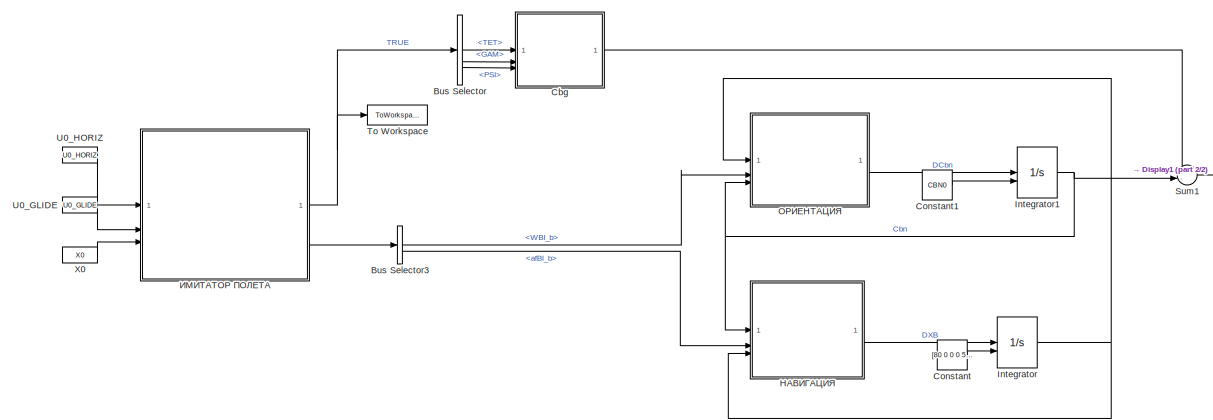
[diagram: root canvas - part 1/2, most of the canvas]
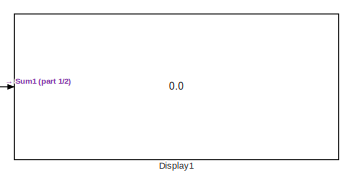
[diagram: root canvas - part 2/2, middle right region]
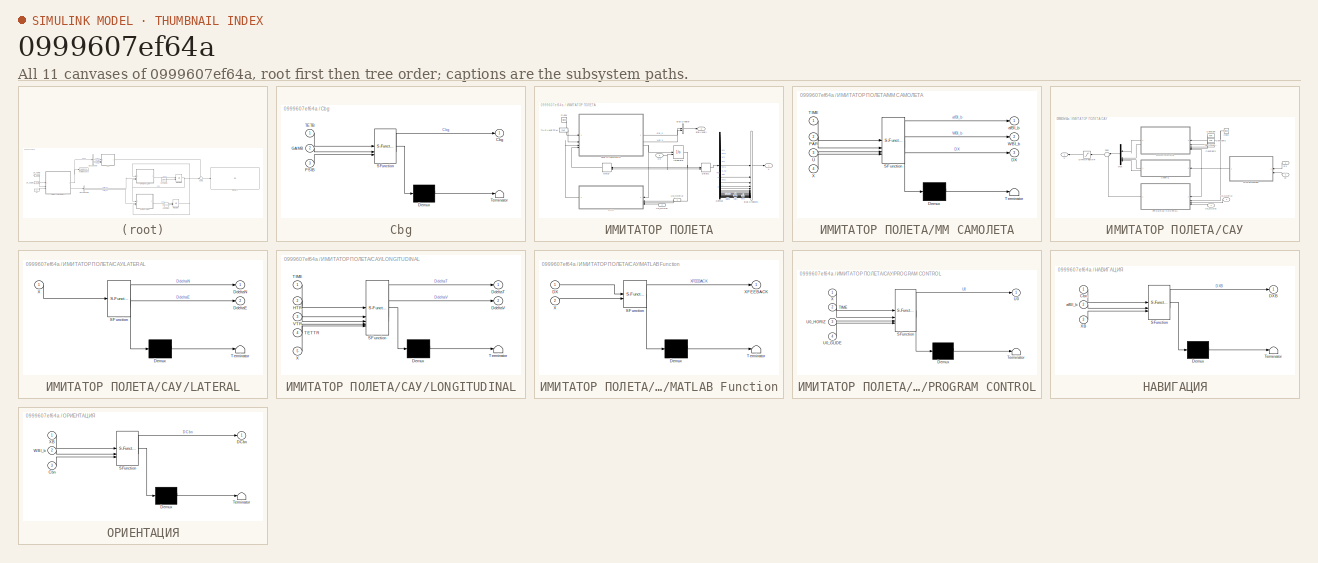
[diagram: thumbnail index - all 11 canvases of the model, root first then tree order]
MODEL slx_0999607ef64a
KIND model
CONFIG AbsTol = auto
CONFIG EnableMultiTasking = on
CONFIG FixedStep = 0.001
CONFIG InitFcn = INIT
CONFIG MaxStep = auto
CONFIG MinStep = auto
CONFIG RelTol = 1e-3
CONFIG SampleTimeConstraint = Unconstrained
CONFIG SolverName = ode1
CONFIG StartTime = 0.0
CONFIG StopTime = 100
BLOCK [BusSelector] Bus Selector
  OutputSignals = TET,GAM,PSI
BLOCK [BusSelector] Bus Selector3
  OutputSignals = WBI_b,afBI_b
BLOCK [SubSystem] Cbg
  ErrorFcn = Stateflow.Translate.translate
  NameLocation = top
  PermitHierarchicalResolution = ExplicitOnly
  SFBlockType = MATLAB Function
  TreatAsAtomicUnit = on
BLOCK [Demux] Cbg/ Demux 
  Outputs = 1
BLOCK [S-Function] Cbg/ SFunction 
  EnableBusSupport = off
  FunctionName = sf_sfun
  PortCounts = [3 2]
  SFcnIsStateOwnerBlock = off
  SFunctionDeploymentMode = off
  Tag = Stateflow S-Function 3
BLOCK [Terminator] Cbg/ Terminator 
BLOCK [Outport] Cbg/Cbg
  VectorParamsAs1DForOutWhenUnconnected = off
BLOCK [Inport] Cbg/GAMB
  Port = 2
BLOCK [Inport] Cbg/PSIB
  Port = 3
BLOCK [Inport] Cbg/TETB
BLOCK [Constant] Constant
  Value = [80 0 0 0 500 0 0 0]
BLOCK [Constant] Constant1
  Value = CBN0
BLOCK [Display] Display1
  Decimation = 1
BLOCK [Integrator] Integrator
  InitialConditionSource = external
BLOCK [Integrator] Integrator1
  InitialConditionSource = external
BLOCK [Sum] Sum1
  Inputs = +-|
BLOCK [ToWorkspace] To Workspace
  FixptAsFi = on
  MaxDataPoints = inf
  SampleTime = -1
  SaveFormat = Timeseries
  VariableName = X_SIM
BLOCK [Constant] U0_GLIDE
  NameLocation = top
  Value = U0_GLIDE
BLOCK [Constant] U0_HORIZ
  NameLocation = top
  Value = U0_HORIZ
BLOCK [Constant] X0
  Value = X0
BLOCK [SubSystem] ИМИТАТОР ПОЛЕТА
BLOCK [BusCreator] ИМИТАТОР ПОЛЕТА/Bus Creator
  DisplayOption = bar
  InheritFromInputs = on
  Inputs = 2
BLOCK [BusCreator] ИМИТАТОР ПОЛЕТА/Bus Creator1
  DisplayOption = bar
  InheritFromInputs = on
  Inputs = 25
BLOCK [Clock] ИМИТАТОР ПОЛЕТА/Clock
BLOCK [Delay] ИМИТАТОР ПОЛЕТА/Delay
  DelayLength = 1
  InitialCondition = 0
  InitialConditionSource = Input port
  InputPortMap = u0,p4
BLOCK [Delay] ИМИТАТОР ПОЛЕТА/Delay1
  DelayLength = 1
  InitialCondition = 0
  InitialConditionSource = Input port
  InputPortMap = u0,p4
  NameLocation = top
BLOCK [Demux] ИМИТАТОР ПОЛЕТА/Demux
  Outputs = 25
BLOCK [Integrator] ИМИТАТОР ПОЛЕТА/Integrator
  InitialConditionSource = external
BLOCK [Inport] ИМИТАТОР ПОЛЕТА/U0_GLIDE
  Port = 2
BLOCK [Inport] ИМИТАТОР ПОЛЕТА/U0_HORIZ
BLOCK [Outport] ИМИТАТОР ПОЛЕТА/X
  VectorParamsAs1DForOutWhenUnconnected = off
BLOCK [Inport] ИМИТАТОР ПОЛЕТА/X0
  Port = 3
BLOCK [Outport] ИМИТАТОР ПОЛЕТА/afBI//WBI
  Port = 2
  VectorParamsAs1DForOutWhenUnconnected = off
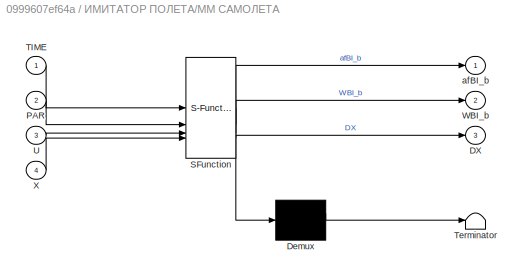
BLOCK [SubSystem] ИМИТАТОР ПОЛЕТА/ММ САМОЛЕТА
  ErrorFcn = Stateflow.Translate.translate
  NameLocation = top
  PermitHierarchicalResolution = ExplicitOnly
  SFBlockType = MATLAB Function
  TreatAsAtomicUnit = on
BLOCK [Demux] ИМИТАТОР ПОЛЕТА/ММ САМОЛЕТА/ Demux 
  Outputs = 1
BLOCK [S-Function] ИМИТАТОР ПОЛЕТА/ММ САМОЛЕТА/ SFunction 
  EnableBusSupport = off
  FunctionName = sf_sfun
  Parameters = TGLIDE,T_AIL,T_ELEV,T_RUD,T_THROTTLE
  PortCounts = [4 4]
  SFcnIsStateOwnerBlock = off
  SFunctionDeploymentMode = off
  Tag = Stateflow S-Function 1
BLOCK [Terminator] ИМИТАТОР ПОЛЕТА/ММ САМОЛЕТА/ Terminator 
BLOCK [Outport] ИМИТАТОР ПОЛЕТА/ММ САМОЛЕТА/DX
  Port = 3
  VectorParamsAs1DForOutWhenUnconnected = off
BLOCK [Inport] ИМИТАТОР ПОЛЕТА/ММ САМОЛЕТА/PAR
  Port = 2
BLOCK [Inport] ИМИТАТОР ПОЛЕТА/ММ САМОЛЕТА/TIME
BLOCK [Inport] ИМИТАТОР ПОЛЕТА/ММ САМОЛЕТА/U
  Port = 3
BLOCK [Outport] ИМИТАТОР ПОЛЕТА/ММ САМОЛЕТА/WBI_b
  Port = 2
  VectorParamsAs1DForOutWhenUnconnected = off
BLOCK [Inport] ИМИТАТОР ПОЛЕТА/ММ САМОЛЕТА/X
  Port = 4
BLOCK [Outport] ИМИТАТОР ПОЛЕТА/ММ САМОЛЕТА/afBI_b
  VectorParamsAs1DForOutWhenUnconnected = off
BLOCK [Constant] ИМИТАТОР ПОЛЕТА/ПАРАМЕТРЫ
  Value = PAR
BLOCK [SubSystem] ИМИТАТОР ПОЛЕТА/САУ
  NameLocation = top
BLOCK [Clock] ИМИТАТОР ПОЛЕТА/САУ/Clock
  NameLocation = top
BLOCK [Constant] ИМИТАТОР ПОЛЕТА/САУ/Constant
  Value = HTR
BLOCK [Constant] ИМИТАТОР ПОЛЕТА/САУ/Constant1
  Value = VTR
BLOCK [Constant] ИМИТАТОР ПОЛЕТА/САУ/Constant2
  Value = THETATR+BAL(2)
BLOCK [Inport] ИМИТАТОР ПОЛЕТА/САУ/DX
BLOCK [SubSystem] ИМИТАТОР ПОЛЕТА/САУ/LATERAL
  ErrorFcn = Stateflow.Translate.translate
  NameLocation = top
  PermitHierarchicalResolution = ExplicitOnly
  SFBlockType = MATLAB Function
  TreatAsAtomicUnit = on
BLOCK [Demux] ИМИТАТОР ПОЛЕТА/САУ/LATERAL/ Demux 
  Outputs = 1
BLOCK [S-Function] ИМИТАТОР ПОЛЕТА/САУ/LATERAL/ SFunction 
  EnableBusSupport = off
  FunctionName = sf_sfun
  PortCounts = [1 3]
  SFcnIsStateOwnerBlock = off
  SFunctionDeploymentMode = off
  Tag = Stateflow S-Function 4
BLOCK [Terminator] ИМИТАТОР ПОЛЕТА/САУ/LATERAL/ Terminator 
BLOCK [Outport] ИМИТАТОР ПОЛЕТА/САУ/LATERAL/DdeltaE
  Port = 2
  VectorParamsAs1DForOutWhenUnconnected = off
BLOCK [Outport] ИМИТАТОР ПОЛЕТА/САУ/LATERAL/DdeltaN
  VectorParamsAs1DForOutWhenUnconnected = off
BLOCK [Inport] ИМИТАТОР ПОЛЕТА/САУ/LATERAL/X
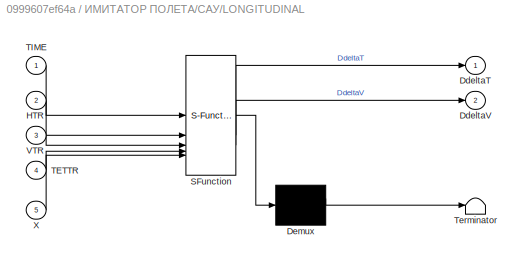
BLOCK [SubSystem] ИМИТАТОР ПОЛЕТА/САУ/LONGITUDINAL
  ErrorFcn = Stateflow.Translate.translate
  NameLocation = top
  PermitHierarchicalResolution = ExplicitOnly
  SFBlockType = MATLAB Function
  TreatAsAtomicUnit = on
BLOCK [Demux] ИМИТАТОР ПОЛЕТА/САУ/LONGITUDINAL/ Demux 
  Outputs = 1
BLOCK [S-Function] ИМИТАТОР ПОЛЕТА/САУ/LONGITUDINAL/ SFunction 
  EnableBusSupport = off
  FunctionName = sf_sfun
  Parameters = TGLIDE
  PortCounts = [5 3]
  SFcnIsStateOwnerBlock = off
  SFunctionDeploymentMode = off
  Tag = Stateflow S-Function 5
BLOCK [Terminator] ИМИТАТОР ПОЛЕТА/САУ/LONGITUDINAL/ Terminator 
BLOCK [Outport] ИМИТАТОР ПОЛЕТА/САУ/LONGITUDINAL/DdeltaT
  VectorParamsAs1DForOutWhenUnconnected = off
BLOCK [Outport] ИМИТАТОР ПОЛЕТА/САУ/LONGITUDINAL/DdeltaV
  Port = 2
  VectorParamsAs1DForOutWhenUnconnected = off
BLOCK [Inport] ИМИТАТОР ПОЛЕТА/САУ/LONGITUDINAL/HTR
  Port = 2
BLOCK [Inport] ИМИТАТОР ПОЛЕТА/САУ/LONGITUDINAL/TETTR
  Port = 4
BLOCK [Inport] ИМИТАТОР ПОЛЕТА/САУ/LONGITUDINAL/TIME
BLOCK [Inport] ИМИТАТОР ПОЛЕТА/САУ/LONGITUDINAL/VTR
  Port = 3
BLOCK [Inport] ИМИТАТОР ПОЛЕТА/САУ/LONGITUDINAL/X
  Port = 5
BLOCK [SubSystem] ИМИТАТОР ПОЛЕТА/САУ/MATLAB Function
  ErrorFcn = Stateflow.Translate.translate
  NameLocation = top
  PermitHierarchicalResolution = ExplicitOnly
  SFBlockType = MATLAB Function
  TreatAsAtomicUnit = on
BLOCK [Demux] ИМИТАТОР ПОЛЕТА/САУ/MATLAB Function/ Demux 
  Outputs = 1
BLOCK [S-Function] ИМИТАТОР ПОЛЕТА/САУ/MATLAB Function/ SFunction 
  EnableBusSupport = off
  FunctionName = sf_sfun
  PortCounts = [2 2]
  SFcnIsStateOwnerBlock = off
  SFunctionDeploymentMode = off
  Tag = Stateflow S-Function 7
BLOCK [Terminator] ИМИТАТОР ПОЛЕТА/САУ/MATLAB Function/ Terminator 
BLOCK [Inport] ИМИТАТОР ПОЛЕТА/САУ/MATLAB Function/DX
BLOCK [Inport] ИМИТАТОР ПОЛЕТА/САУ/MATLAB Function/X
  Port = 2
BLOCK [Outport] ИМИТАТОР ПОЛЕТА/САУ/MATLAB Function/XFEEBACK
  VectorParamsAs1DForOutWhenUnconnected = off
BLOCK [Mux] ИМИТАТОР ПОЛЕТА/САУ/Mux
  DisplayOption = bar
  NameLocation = top
BLOCK [SubSystem] ИМИТАТОР ПОЛЕТА/САУ/PROGRAM CONTROL
  ErrorFcn = Stateflow.Translate.translate
  NameLocation = top
  PermitHierarchicalResolution = ExplicitOnly
  SFBlockType = MATLAB Function
  TreatAsAtomicUnit = on
BLOCK [Demux] ИМИТАТОР ПОЛЕТА/САУ/PROGRAM CONTROL/ Demux 
  Outputs = 1
BLOCK [S-Function] ИМИТАТОР ПОЛЕТА/САУ/PROGRAM CONTROL/ SFunction 
  EnableBusSupport = off
  FunctionName = sf_sfun
  Parameters = TGLIDE
  PortCounts = [4 2]
  SFcnIsStateOwnerBlock = off
  SFunctionDeploymentMode = off
  Tag = Stateflow S-Function 8
BLOCK [Terminator] ИМИТАТОР ПОЛЕТА/САУ/PROGRAM CONTROL/ Terminator 
BLOCK [Inport] ИМИТАТОР ПОЛЕТА/САУ/PROGRAM CONTROL/TIME
  Port = 2
BLOCK [Outport] ИМИТАТОР ПОЛЕТА/САУ/PROGRAM CONTROL/U0
  VectorParamsAs1DForOutWhenUnconnected = off
BLOCK [Inport] ИМИТАТОР ПОЛЕТА/САУ/PROGRAM CONTROL/U0_GLIDE
  Port = 4
BLOCK [Inport] ИМИТАТОР ПОЛЕТА/САУ/PROGRAM CONTROL/U0_HORIZ
  Port = 3
BLOCK [Inport] ИМИТАТОР ПОЛЕТА/САУ/PROGRAM CONTROL/X
BLOCK [Sum] ИМИТАТОР ПОЛЕТА/САУ/Sum
  Inputs = |++
  NameLocation = top
BLOCK [Outport] ИМИТАТОР ПОЛЕТА/САУ/U
  VectorParamsAs1DForOutWhenUnconnected = off
BLOCK [Inport] ИМИТАТОР ПОЛЕТА/САУ/U0_GLIDE
  Port = 4
BLOCK [Inport] ИМИТАТОР ПОЛЕТА/САУ/U0_HORIZ
  Port = 3
BLOCK [Inport] ИМИТАТОР ПОЛЕТА/САУ/XX
  Port = 2
BLOCK [Saturate] ИМИТАТОР ПОЛЕТА/САУ/ОГРАНИЧЕНИЯ
  LowerLimit = [0.1 -25 -25 -25]
  UpperLimit = [0.85 30 25 25]
BLOCK [SubSystem] НАВИГАЦИЯ
  ErrorFcn = Stateflow.Translate.translate
  NameLocation = top
  PermitHierarchicalResolution = ExplicitOnly
  SFBlockType = MATLAB Function
  TreatAsAtomicUnit = on
BLOCK [Demux] НАВИГАЦИЯ/ Demux 
  Outputs = 1
BLOCK [S-Function] НАВИГАЦИЯ/ SFunction 
  EnableBusSupport = off
  FunctionName = sf_sfun
  PortCounts = [3 2]
  SFcnIsStateOwnerBlock = off
  SFunctionDeploymentMode = off
  Tag = Stateflow S-Function 2
BLOCK [Terminator] НАВИГАЦИЯ/ Terminator 
BLOCK [Inport] НАВИГАЦИЯ/Cbn
BLOCK [Outport] НАВИГАЦИЯ/DXB
  VectorParamsAs1DForOutWhenUnconnected = off
BLOCK [Inport] НАВИГАЦИЯ/XB
  Port = 3
BLOCK [Inport] НАВИГАЦИЯ/afBI_b
  Port = 2
BLOCK [SubSystem] ОРИЕНТАЦИЯ
  ErrorFcn = Stateflow.Translate.translate
  NameLocation = top
  PermitHierarchicalResolution = ExplicitOnly
  SFBlockType = MATLAB Function
  TreatAsAtomicUnit = on
BLOCK [Demux] ОРИЕНТАЦИЯ/ Demux 
  Outputs = 1
BLOCK [S-Function] ОРИЕНТАЦИЯ/ SFunction 
  EnableBusSupport = off
  FunctionName = sf_sfun
  PortCounts = [3 2]
  SFcnIsStateOwnerBlock = off
  SFunctionDeploymentMode = off
  Tag = Stateflow S-Function 6
BLOCK [Terminator] ОРИЕНТАЦИЯ/ Terminator 
BLOCK [Inport] ОРИЕНТАЦИЯ/Cbn
  Port = 3
BLOCK [Outport] ОРИЕНТАЦИЯ/DCbn
  VectorParamsAs1DForOutWhenUnconnected = off
BLOCK [Inport] ОРИЕНТАЦИЯ/WBI_b
  Port = 2
BLOCK [Inport] ОРИЕНТАЦИЯ/XB
LINE Bus Selector3:1 -> ОРИЕНТАЦИЯ:2
LINE Bus Selector3:2 -> НАВИГАЦИЯ:2
LINE Bus Selector:1 -> Cbg:1
LINE Bus Selector:2 -> Cbg:2
LINE Bus Selector:3 -> Cbg:3
LINE Cbg:1 -> Sum1:1
LINE Constant1:1 -> Integrator1:2
LINE Constant:1 -> Integrator:2
NET Integrator1:1 -> Sum1:2, НАВИГАЦИЯ:1, ОРИЕНТАЦИЯ:3
NET Integrator:1 -> НАВИГАЦИЯ:3, ОРИЕНТАЦИЯ:1
LINE Sum1:1 -> Display1:1
LINE U0_GLIDE:1 -> ИМИТАТОР ПОЛЕТА:2
LINE U0_HORIZ:1 -> ИМИТАТОР ПОЛЕТА:1
LINE X0:1 -> ИМИТАТОР ПОЛЕТА:3
LINE ИМИТАТОР ПОЛЕТА/Bus Creator1:1 -> ИМИТАТОР ПОЛЕТА/X:1
LINE ИМИТАТОР ПОЛЕТА/Bus Creator:1 -> ИМИТАТОР ПОЛЕТА/afBI//WBI:1
LINE ИМИТАТОР ПОЛЕТА/Clock:1 -> ИМИТАТОР ПОЛЕТА/ММ САМОЛЕТА:1
LINE ИМИТАТОР ПОЛЕТА/Delay1:1 -> ИМИТАТОР ПОЛЕТА/Demux:1
LINE ИМИТАТОР ПОЛЕТА/Delay:1 -> ИМИТАТОР ПОЛЕТА/ММ САМОЛЕТА:4
LINE ИМИТАТОР ПОЛЕТА/Demux:1 -> ИМИТАТОР ПОЛЕТА/Bus Creator1:1
LINE ИМИТАТОР ПОЛЕТА/Demux:10 -> ИМИТАТОР ПОЛЕТА/Bus Creator1:10
LINE ИМИТАТОР ПОЛЕТА/Demux:11 -> ИМИТАТОР ПОЛЕТА/Bus Creator1:11
LINE ИМИТАТОР ПОЛЕТА/Demux:12 -> ИМИТАТОР ПОЛЕТА/Bus Creator1:12
LINE ИМИТАТОР ПОЛЕТА/Demux:13 -> ИМИТАТОР ПОЛЕТА/Bus Creator1:13
LINE ИМИТАТОР ПОЛЕТА/Demux:14 -> ИМИТАТОР ПОЛЕТА/Bus Creator1:14
LINE ИМИТАТОР ПОЛЕТА/Demux:15 -> ИМИТАТОР ПОЛЕТА/Bus Creator1:15
LINE ИМИТАТОР ПОЛЕТА/Demux:16 -> ИМИТАТОР ПОЛЕТА/Bus Creator1:16
LINE ИМИТАТОР ПОЛЕТА/Demux:17 -> ИМИТАТОР ПОЛЕТА/Bus Creator1:17
LINE ИМИТАТОР ПОЛЕТА/Demux:18 -> ИМИТАТОР ПОЛЕТА/Bus Creator1:18
LINE ИМИТАТОР ПОЛЕТА/Demux:19 -> ИМИТАТОР ПОЛЕТА/Bus Creator1:19
LINE ИМИТАТОР ПОЛЕТА/Demux:2 -> ИМИТАТОР ПОЛЕТА/Bus Creator1:2
LINE ИМИТАТОР ПОЛЕТА/Demux:20 -> ИМИТАТОР ПОЛЕТА/Bus Creator1:20
LINE ИМИТАТОР ПОЛЕТА/Demux:21 -> ИМИТАТОР ПОЛЕТА/Bus Creator1:21
LINE ИМИТАТОР ПОЛЕТА/Demux:22 -> ИМИТАТОР ПОЛЕТА/Bus Creator1:22
LINE ИМИТАТОР ПОЛЕТА/Demux:23 -> ИМИТАТОР ПОЛЕТА/Bus Creator1:23
LINE ИМИТАТОР ПОЛЕТА/Demux:24 -> ИМИТАТОР ПОЛЕТА/Bus Creator1:24
LINE ИМИТАТОР ПОЛЕТА/Demux:25 -> ИМИТАТОР ПОЛЕТА/Bus Creator1:25
LINE ИМИТАТОР ПОЛЕТА/Demux:3 -> ИМИТАТОР ПОЛЕТА/Bus Creator1:3
LINE ИМИТАТОР ПОЛЕТА/Demux:4 -> ИМИТАТОР ПОЛЕТА/Bus Creator1:4
LINE ИМИТАТОР ПОЛЕТА/Demux:5 -> ИМИТАТОР ПОЛЕТА/Bus Creator1:5
LINE ИМИТАТОР ПОЛЕТА/Demux:6 -> ИМИТАТОР ПОЛЕТА/Bus Creator1:6
LINE ИМИТАТОР ПОЛЕТА/Demux:7 -> ИМИТАТОР ПОЛЕТА/Bus Creator1:7
LINE ИМИТАТОР ПОЛЕТА/Demux:8 -> ИМИТАТОР ПОЛЕТА/Bus Creator1:8
LINE ИМИТАТОР ПОЛЕТА/Demux:9 -> ИМИТАТОР ПОЛЕТА/Bus Creator1:9
NET ИМИТАТОР ПОЛЕТА/Integrator:1 -> ИМИТАТОР ПОЛЕТА/Delay1:1, ИМИТАТОР ПОЛЕТА/Delay:1, ИМИТАТОР ПОЛЕТА/САУ:2
LINE ИМИТАТОР ПОЛЕТА/U0_GLIDE:1 -> ИМИТАТОР ПОЛЕТА/САУ:4
LINE ИМИТАТОР ПОЛЕТА/U0_HORIZ:1 -> ИМИТАТОР ПОЛЕТА/САУ:3
NET ИМИТАТОР ПОЛЕТА/X0:1 -> ИМИТАТОР ПОЛЕТА/Delay1:2, ИМИТАТОР ПОЛЕТА/Delay:2, ИМИТАТОР ПОЛЕТА/Integrator:2
LINE ИМИТАТОР ПОЛЕТА/ММ САМОЛЕТА:1 -> ИМИТАТОР ПОЛЕТА/Bus Creator:1
LINE ИМИТАТОР ПОЛЕТА/ММ САМОЛЕТА:2 -> ИМИТАТОР ПОЛЕТА/Bus Creator:2
NET ИМИТАТОР ПОЛЕТА/ММ САМОЛЕТА:3 -> ИМИТАТОР ПОЛЕТА/Integrator:1, ИМИТАТОР ПОЛЕТА/САУ:1
LINE ИМИТАТОР ПОЛЕТА/ПАРАМЕТРЫ:1 -> ИМИТАТОР ПОЛЕТА/ММ САМОЛЕТА:2
NET ИМИТАТОР ПОЛЕТА/САУ/Clock:1 -> ИМИТАТОР ПОЛЕТА/САУ/LONGITUDINAL:1, ИМИТАТОР ПОЛЕТА/САУ/PROGRAM CONTROL:2
LINE ИМИТАТОР ПОЛЕТА/САУ/Constant1:1 -> ИМИТАТОР ПОЛЕТА/САУ/LONGITUDINAL:3
LINE ИМИТАТОР ПОЛЕТА/САУ/Constant2:1 -> ИМИТАТОР ПОЛЕТА/САУ/LONGITUDINAL:4
LINE ИМИТАТОР ПОЛЕТА/САУ/Constant:1 -> ИМИТАТОР ПОЛЕТА/САУ/LONGITUDINAL:2
LINE ИМИТАТОР ПОЛЕТА/САУ/DX:1 -> ИМИТАТОР ПОЛЕТА/САУ/MATLAB Function:1
LINE ИМИТАТОР ПОЛЕТА/САУ/LATERAL:1 -> ИМИТАТОР ПОЛЕТА/САУ/Mux:3
LINE ИМИТАТОР ПОЛЕТА/САУ/LATERAL:2 -> ИМИТАТОР ПОЛЕТА/САУ/Mux:4
LINE ИМИТАТОР ПОЛЕТА/САУ/LONGITUDINAL:1 -> ИМИТАТОР ПОЛЕТА/САУ/Mux:1
LINE ИМИТАТОР ПОЛЕТА/САУ/LONGITUDINAL:2 -> ИМИТАТОР ПОЛЕТА/САУ/Mux:2
NET ИМИТАТОР ПОЛЕТА/САУ/MATLAB Function:1 -> ИМИТАТОР ПОЛЕТА/САУ/LATERAL:1, ИМИТАТОР ПОЛЕТА/САУ/LONGITUDINAL:5, ИМИТАТОР ПОЛЕТА/САУ/PROGRAM CONTROL:1
LINE ИМИТАТОР ПОЛЕТА/САУ/Mux:1 -> ИМИТАТОР ПОЛЕТА/САУ/Sum:1
LINE ИМИТАТОР ПОЛЕТА/САУ/PROGRAM CONTROL:1 -> ИМИТАТОР ПОЛЕТА/САУ/Sum:2
LINE ИМИТАТОР ПОЛЕТА/САУ/Sum:1 -> ИМИТАТОР ПОЛЕТА/САУ/ОГРАНИЧЕНИЯ:1
LINE ИМИТАТОР ПОЛЕТА/САУ/U0_GLIDE:1 -> ИМИТАТОР ПОЛЕТА/САУ/PROGRAM CONTROL:4
LINE ИМИТАТОР ПОЛЕТА/САУ/U0_HORIZ:1 -> ИМИТАТОР ПОЛЕТА/САУ/PROGRAM CONTROL:3
LINE ИМИТАТОР ПОЛЕТА/САУ/XX:1 -> ИМИТАТОР ПОЛЕТА/САУ/MATLAB Function:2
LINE ИМИТАТОР ПОЛЕТА/САУ/ОГРАНИЧЕНИЯ:1 -> ИМИТАТОР ПОЛЕТА/САУ/U:1
LINE ИМИТАТОР ПОЛЕТА/САУ:1 -> ИМИТАТОР ПОЛЕТА/ММ САМОЛЕТА:3
NET ИМИТАТОР ПОЛЕТА:1 -> Bus Selector:1, To Workspace:1
LINE ИМИТАТОР ПОЛЕТА:2 -> Bus Selector3:1
LINE НАВИГАЦИЯ:1 -> Integrator:1
LINE ОРИЕНТАЦИЯ:1 -> Integrator1:1
note: NET lines group one-source signal fan-out (src -> all destinations, sorted); 1:1 wires keep LINE
CHART ИМИТАТОР ПОЛЕТА/ММ САМОЛЕТА states=1 transitions=1
  STATE_LABEL 'eML_blk_kernel()'
  STATE_LABEL 'SCRIPT:\nfunction [afBI_b,WBI_b,DX] =FX(TIME,PAR,U,X,T_THROTTLE, T_ELEV, T_RUD, T_AIL,TGLIDE)\n    m=PAR(1);\n    fiP=PAR(2)*pi/180;\n    Jxx=PAR(3);\n    Jyy=PAR(4);\n    Jzz=PAR(5);\n    Jxy=PAR(6);\n\n    Cy0=PAR(7);\n    Cy_ALP=PAR(8);\n    Cy_deltaV=PAR(9);\n    Cy_fi=PAR(10);\n\n    Cx0=PAR(11);\n    A=PAR(12);\n    B=PAR(13);\n    Cx_deltaV=PAR(14);\n    Cx_ALP_deltaV=PAR(15);\n    Cx_ALP2_deltaV=PAR(16);\n   ...<+3608ch>'
CHART НАВИГАЦИЯ states=1 transitions=1
  STATE_LABEL 'eML_blk_kernel()'
  STATE_LABEL 'SCRIPT:\nfunction DXB  =FNAVI(Cbn,afBI_b,XB)\n          \nend\nfunction [Gg] = GRAVITY(FI,r)    \n    %% Параметры гравитационного поля Земли\n    d00=39861679.0E+7;\n    d20=175519.0E+20;\n    a=6378245.0;\n    b=6356856.0;\n    e2=(a^2-b^2)/a^2;\n\n    %% Геоцентрическая широта\n    SINFI=sin(FI);\n    SINMU=e2*SINFI*cos(FI)/sqrt(1-(2*e2-e2^2)*SINFI^2);\n    COSMU=(1-e2*SINFI^2)/sqrt(1-(2*e2-e2^2)*SINFI^2);\n  ...<+352ch>'
CHART Cbg states=1 transitions=1
  STATE_LABEL 'eML_blk_kernel()'
  STATE_LABEL 'SCRIPT:\nfunction Cbg   = C_gb(TETB, GAMB, PSIB)\n\nCbg = zeros(3,3);\n\nCbg(1,1)=cos(PSIB)*cos(TETB);\nCbg(1,2)=-cos(PSIB)*sin(TETB)*cos(GAMB)+sin(PSIB)*sin(GAMB);\nCbg(1,3)=cos(PSIB)*sin(TETB)*sin(GAMB)+sin(PSIB)*cos(GAMB);\n\nCbg(2,1)=sin(TETB);\nCbg(2,2)=cos(TETB)*cos(GAMB);\nCbg(2,3)=-cos(TETB)*sin(GAMB);\n\nCbg(3,1)=-cos(TETB)*sin(PSIB);\t\nCbg(3,2)=cos(PSIB)*sin(GAMB)+sin(PSIB)*sin(TETB)*cos(GAMB);\t\nCbg(3...<+58ch>'
CHART ИМИТАТОР ПОЛЕТА/САУ/LATERAL states=1 transitions=1
  STATE_LABEL 'eML_blk_kernel()'
  STATE_LABEL 'SCRIPT:\nfunction [DdeltaN,DdeltaE] = AUTOPILOT_LAT(X)\n%    Wx=X(1); GAM=X(5); Az=X(9); Vz=X(12); Z=X(15);\n%    Wy=X(2); PSI=X(6);\n\n    Wx=X(1);    Wy=X(2);\n    GAM=X(4);   PSI=X(5);\n    Az=X(7);\n    Vz=X(8);\n    Z=X(9);\n\n\n    K_AIL_Z= -0.007852;\n    K_AIL_Vz = 0.008516;\n    K_AIL_Az = 0.323961;\n    K_AIL_GAM = -0.295147;\n    K_AIL_Wx = -4.501701;\n    K_RUD_Z = -0.010000;\n    K_RUD_Vz = -0.000950;\n...<+254ch>'
CHART ИМИТАТОР ПОЛЕТА/САУ/LONGITUDINAL states=1 transitions=1
  STATE_LABEL 'eML_blk_kernel()'
  STATE_LABEL 'SCRIPT:\nfunction [DdeltaT,DdeltaV] = AUTOPILOT_LONG(TIME,HTR,VTR,TETTR,X,TGLIDE)\n    %% оценка состояния ЛА\n    %H=X(14);\n    %V=sqrt(X(1)^2+X(2)^2+X(3)^2);   DV=sqrt(X(7)^2+X(8)^2+X(9)^2);\n    %Wz=X(3);    TET=X(4);    \n    V=X(10);\n    DV=X(11);\n    H=X(12);\n    Wz=X(3);\n    TET=X(6);\n    THETA=X(13);\n    d=X(14);\n    HFL=X(15);\n\tEPS=X(16);\n    X1=X(17);   \n    \n    %% Правило переключения между...<+1445ch>'
CHART ОРИЕНТАЦИЯ states=1 transitions=1
  STATE_LABEL 'eML_blk_kernel()'
  STATE_LABEL 'SCRIPT:\nfunction DCbn   =FORIENT(XB,WBI_b,Cbn)\n\nend'
CHART ИМИТАТОР ПОЛЕТА/САУ/MATLAB Function states=1 transitions=1
  STATE_LABEL 'eML_blk_kernel()'
  STATE_LABEL 'SCRIPT:\nfunction XFEEBACK  = fcn(DX,X)\nWx=X(4);    Wy=X(5);    Wz=X(6);\nGAM=X(7);   PSI=X(8);   TET=X(9);\nV=sqrt(X(1)^2+X(2)^2+X(3)^2);\nDV=sqrt(DX(1)^2+DX(2)^2+DX(3)^2);\nH=X(11); \nZ=X(12);\nAz=DX(3);\nVxg=DX(10);\nVyg=DX(11);\nVzg=DX(12);\nd=X(15); \nTHETA=asin(Vyg/sqrt(Vxg^2+Vzg^2));\nHFL=X(23);\nEPS=X(24);\nX1=X(25);\nXFEEBACK=[Wx Wy Wz GAM PSI TET Az Vzg Z V DV H THETA d HFL EPS X1];'
CHART ИМИТАТОР ПОЛЕТА/САУ/PROGRAM CONTROL states=1 transitions=1
  STATE_LABEL 'eML_blk_kernel()'
  STATE_LABEL 'SCRIPT:\nfunction U0 = PROGCNTRL(X,TIME,U0_HORIZ,U0_GLIDE,TGLIDE)\n    U0=[0;0;0;0];\n    %% Текущая высота\n    H=X(12);\n    %% Время отсчитанное от начала выравнивания\t\n    TFLARE=0.0; %(ошибка!!!)\n    DT=1.E-3;    \n    %% Правило переключения между режимами\n    if (TIME<TGLIDE && H>400)\n        KEY=0;\n    elseif (H>15.0)\n        KEY=1;\n    else\n        KEY=2;\n    end\n    %% Законы управления\n    if...<+333ch>'
CHART  states=0 transitions=0
CHART  states=0 transitions=0
CHART  states=0 transitions=0
CHART  states=0 transitions=0
CHART  states=0 transitions=0
CHART  states=0 transitions=0
CHART  states=0 transitions=0
CHART  states=0 transitions=0
